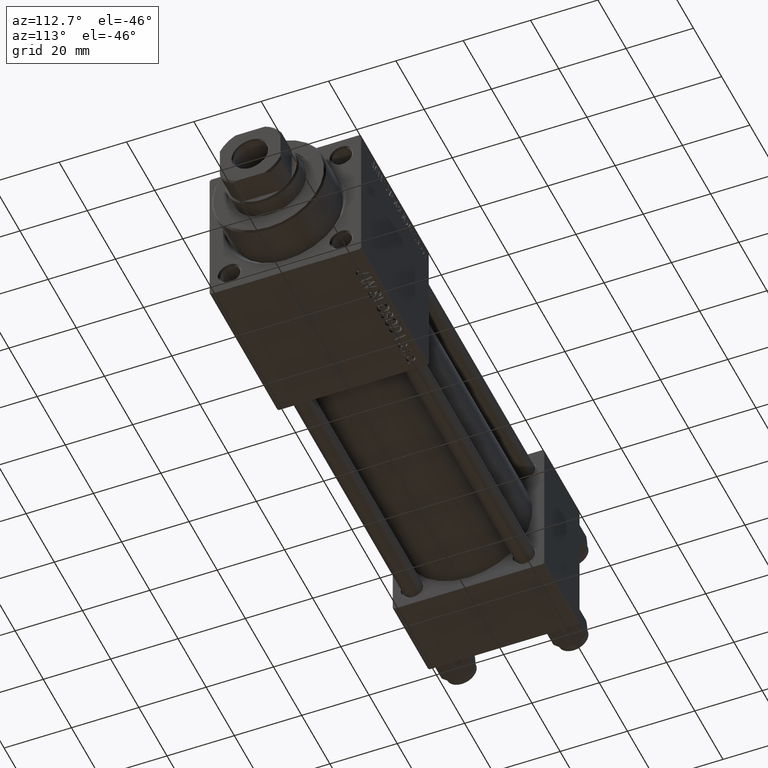
[diagram: clean part render]
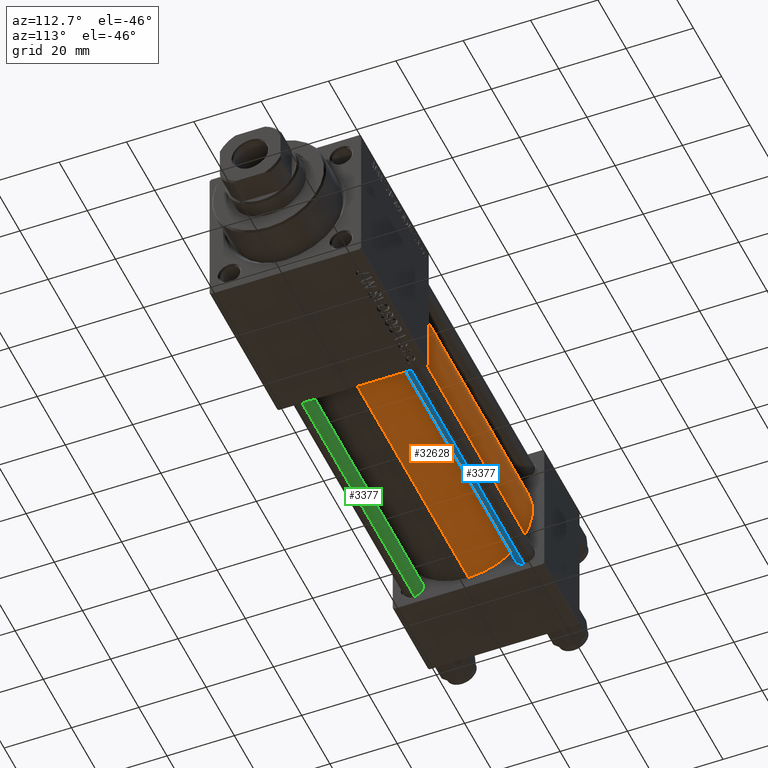
[diagram: same view with three faces highlighted in distinct colors, each labeled with its STEP entity id]
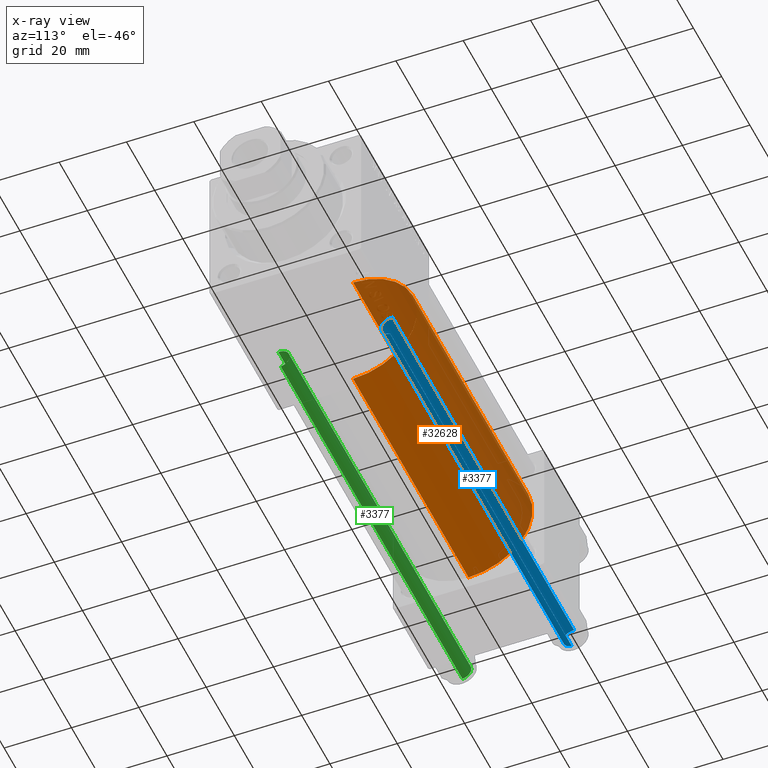
[diagram: x-ray of the same camera — body ghosted, the three highlighted faces saturated]
A machine part, auxiliary view with three faces highlighted in distinct colors.
The next image is the same camera in x-ray (body ghosted, the three faces saturated) — at least one of them is partly hidden behind the body in this view.
Their STEP definitions:

[orange] entity #32628 — the highlighted cylindrical surface (partial cylindrical patch) has radius 19 mm, axis along (-1, -0, -0).
#1298 = CARTESIAN_POINT ( 'NONE',  ( 24.99999999999999289, -2.602085213965210642E-15, 0.000000000000000000 ) ) ;
#2283 = DIRECTION ( 'NONE',  ( -1.000000000000000000, -0.000000000000000000, -0.000000000000000000 ) ) ;
#2472 = CIRCLE ( 'NONE', #20314, 19.00000000000000000 ) ;
#2782 = CARTESIAN_POINT ( 'NONE',  ( 24.99999999999999289, -2.752562955852396712E-16, -19.00000000000000000 ) ) ;
#3744 = VERTEX_POINT ( 'NONE', #37486 ) ;
#3957 = CIRCLE ( 'NONE', #32337, 19.00000000000000000 ) ;
#6066 = FACE_OUTER_BOUND ( 'NONE', #40424, .T. ) ;
#6480 = EDGE_CURVE ( 'NONE', #7196, #46369, #33509, .T. ) ;
#7196 = VERTEX_POINT ( 'NONE', #39369 ) ;
#9655 = CARTESIAN_POINT ( 'NONE',  ( 107.0000000000000142, -2.752562955852396712E-16, -19.00000000000000000 ) ) ;
#10623 = DIRECTION ( 'NONE',  ( 0.000000000000000000, 0.000000000000000000, 1.000000000000000000 ) ) ;
#11414 = ORIENTED_EDGE ( 'NONE', *, *, #6480, .T. ) ;
#14192 = DIRECTION ( 'NONE',  ( -1.000000000000000000, -0.000000000000000000, -0.000000000000000000 ) ) ;
#16784 = DIRECTION ( 'NONE',  ( 1.000000000000000000, -0.000000000000000000, 0.000000000000000000 ) ) ;
#18276 = DIRECTION ( 'NONE',  ( -1.000000000000000000, -0.000000000000000000, -0.000000000000000000 ) ) ;
#19685 = DIRECTION ( 'NONE',  ( 0.000000000000000000, 0.000000000000000000, -1.000000000000000000 ) ) ;
#20314 = AXIS2_PLACEMENT_3D ( 'NONE', #49869, #34646, #19685 ) ;
#21037 = EDGE_CURVE ( 'NONE', #46369, #45978, #3957, .T. ) ;
#21297 = CARTESIAN_POINT ( 'NONE',  ( 107.0000000000000142, -2.602085213965210642E-15, 0.000000000000000000 ) ) ;
#21550 = CYLINDRICAL_SURFACE ( 'NONE', #43943, 19.00000000000000000 ) ;
#23844 = ORIENTED_EDGE ( 'NONE', *, *, #48892, .F. ) ;
#25433 = EDGE_CURVE ( 'NONE', #7196, #3744, #2472, .T. ) ;
#29448 = CARTESIAN_POINT ( 'NONE',  ( 107.0000000000000142, -2.602085213965210642E-15, 19.00000000000000000 ) ) ;
#31673 = ORIENTED_EDGE ( 'NONE', *, *, #25433, .F. ) ;
#32337 = AXIS2_PLACEMENT_3D ( 'NONE', #1298, #16784, #47732 ) ;
#32628 = ADVANCED_FACE ( 'NONE', ( #6066 ), #21550, .T. ) ;
#33509 = LINE ( 'NONE', #9655, #47696 ) ;
#34646 = DIRECTION ( 'NONE',  ( 1.000000000000000000, 0.000000000000000000, 0.000000000000000000 ) ) ;
#35155 = ORIENTED_EDGE ( 'NONE', *, *, #21037, .T. ) ;
#37486 = CARTESIAN_POINT ( 'NONE',  ( 107.0000000000000142, -2.602085213965210642E-15, 19.00000000000000000 ) ) ;
#39163 = CARTESIAN_POINT ( 'NONE',  ( 24.99999999999999289, -2.602085213965210642E-15, 19.00000000000000000 ) ) ;
#39369 = CARTESIAN_POINT ( 'NONE',  ( 107.0000000000000142, -2.752562955852396712E-16, -19.00000000000000000 ) ) ;
#40424 = EDGE_LOOP ( 'NONE', ( #31673, #11414, #35155, #23844 ) ) ;
#43943 = AXIS2_PLACEMENT_3D ( 'NONE', #21297, #14192, #10623 ) ;
#45978 = VERTEX_POINT ( 'NONE', #39163 ) ;
#46369 = VERTEX_POINT ( 'NONE', #2782 ) ;
#47696 = VECTOR ( 'NONE', #2283, 1000.000000000000000 ) ;
#47732 = DIRECTION ( 'NONE',  ( 0.000000000000000000, 0.000000000000000000, 1.000000000000000000 ) ) ;
#48707 = LINE ( 'NONE', #29448, #48992 ) ;
#48892 = EDGE_CURVE ( 'NONE', #3744, #45978, #48707, .T. ) ;
#48992 = VECTOR ( 'NONE', #18276, 1000.000000000000000 ) ;
#49869 = CARTESIAN_POINT ( 'NONE',  ( 107.0000000000000142, -2.602085213965210642E-15, 0.000000000000000000 ) ) ;

[blue] entity #3377 — the highlighted cylindrical surface (edge-blend (fillet) strip) has radius 3 mm, axis along (1, -0, 0).
#295 = VERTEX_POINT ( 'NONE', #24241 ) ;
#695 = AXIS2_PLACEMENT_3D ( 'NONE', #1338, #43967, #43721 ) ;
#868 = CARTESIAN_POINT ( 'NONE',  ( 3.000000000000000444, 3.673940397442060361E-16, 130.0000000000000000 ) ) ;
#1338 = CARTESIAN_POINT ( 'NONE',  ( 0.000000000000000000, 0.000000000000000000, 130.0000000000000000 ) ) ;
#1771 = VECTOR ( 'NONE', #31843, 1000.000000000000000 ) ;
#2676 = ORIENTED_EDGE ( 'NONE', *, *, #44645, .T. ) ;
#3377 = ADVANCED_FACE ( 'NONE', ( #12777 ), #35872, .T. ) ;
#4682 = LINE ( 'NONE', #868, #1771 ) ;
#7948 = DIRECTION ( 'NONE',  ( 1.000000000000000000, 0.000000000000000000, 0.000000000000000000 ) ) ;
#10038 = CARTESIAN_POINT ( 'NONE',  ( -3.000000000000000444, 0.000000000000000000, 0.5000000000000281997 ) ) ;
#10704 = ORIENTED_EDGE ( 'NONE', *, *, #32348, .F. ) ;
#12777 = FACE_OUTER_BOUND ( 'NONE', #40488, .T. ) ;
#16485 = CARTESIAN_POINT ( 'NONE',  ( 3.000000000000000444, 3.673940397442060361E-16, 0.5000000000000281997 ) ) ;
#17538 = EDGE_CURVE ( 'NONE', #25490, #49614, #28222, .T. ) ;
#17662 = ORIENTED_EDGE ( 'NONE', *, *, #34194, .T. ) ;
#18284 = ORIENTED_EDGE ( 'NONE', *, *, #17538, .T. ) ;
#21807 = VECTOR ( 'NONE', #23661, 1000.000000000000000 ) ;
#22905 = AXIS2_PLACEMENT_3D ( 'NONE', #23437, #30307, #7948 ) ;
#23437 = CARTESIAN_POINT ( 'NONE',  ( 0.000000000000000000, 0.000000000000000000, 0.5000000000000281997 ) ) ;
#23661 = DIRECTION ( 'NONE',  ( -0.000000000000000000, -0.000000000000000000, -1.000000000000000000 ) ) ;
#24241 = CARTESIAN_POINT ( 'NONE',  ( 3.000000000000000444, 3.673940397442060361E-16, 129.5000000000000568 ) ) ;
#25490 = VERTEX_POINT ( 'NONE', #36405 ) ;
#28222 = LINE ( 'NONE', #43684, #21807 ) ;
#29662 = VERTEX_POINT ( 'NONE', #16485 ) ;
#30307 = DIRECTION ( 'NONE',  ( -0.000000000000000000, -0.000000000000000000, 1.000000000000000000 ) ) ;
#31834 = CIRCLE ( 'NONE', #22905, 3.000000000000000444 ) ;
#31843 = DIRECTION ( 'NONE',  ( -0.000000000000000000, -0.000000000000000000, -1.000000000000000000 ) ) ;
#32292 = CARTESIAN_POINT ( 'NONE',  ( 0.000000000000000000, 0.000000000000000000, 129.5000000000000568 ) ) ;
#32348 = EDGE_CURVE ( 'NONE', #295, #29662, #4682, .T. ) ;
#34194 = EDGE_CURVE ( 'NONE', #49614, #29662, #31834, .T. ) ;
#35872 = CYLINDRICAL_SURFACE ( 'NONE', #695, 3.000000000000000444 ) ;
#36405 = CARTESIAN_POINT ( 'NONE',  ( -3.000000000000000444, 0.000000000000000000, 129.5000000000000568 ) ) ;
#36839 = DIRECTION ( 'NONE',  ( 0.000000000000000000, 0.000000000000000000, -1.000000000000000000 ) ) ;
#40488 = EDGE_LOOP ( 'NONE', ( #10704, #2676, #18284, #17662 ) ) ;
#43684 = CARTESIAN_POINT ( 'NONE',  ( -3.000000000000000444, 0.000000000000000000, 130.0000000000000000 ) ) ;
#43721 = DIRECTION ( 'NONE',  ( -1.000000000000000000, 0.000000000000000000, 0.000000000000000000 ) ) ;
#43967 = DIRECTION ( 'NONE',  ( -0.000000000000000000, -0.000000000000000000, -1.000000000000000000 ) ) ;
#44645 = EDGE_CURVE ( 'NONE', #295, #25490, #47223, .T. ) ;
#46432 = AXIS2_PLACEMENT_3D ( 'NONE', #32292, #36839, #47758 ) ;
#47223 = CIRCLE ( 'NONE', #46432, 3.000000000000000444 ) ;
#47758 = DIRECTION ( 'NONE',  ( 1.000000000000000000, 0.000000000000000000, 0.000000000000000000 ) ) ;
#49614 = VERTEX_POINT ( 'NONE', #10038 ) ;

[green] entity #3377 — the highlighted cylindrical surface (edge-blend (fillet) strip) has radius 3 mm, axis along (-1, -0, -0).
#295 = VERTEX_POINT ( 'NONE', #24241 ) ;
#695 = AXIS2_PLACEMENT_3D ( 'NONE', #1338, #43967, #43721 ) ;
#868 = CARTESIAN_POINT ( 'NONE',  ( 3.000000000000000444, 3.673940397442060361E-16, 130.0000000000000000 ) ) ;
#1338 = CARTESIAN_POINT ( 'NONE',  ( 0.000000000000000000, 0.000000000000000000, 130.0000000000000000 ) ) ;
#1771 = VECTOR ( 'NONE', #31843, 1000.000000000000000 ) ;
#2676 = ORIENTED_EDGE ( 'NONE', *, *, #44645, .T. ) ;
#3377 = ADVANCED_FACE ( 'NONE', ( #12777 ), #35872, .T. ) ;
#4682 = LINE ( 'NONE', #868, #1771 ) ;
#7948 = DIRECTION ( 'NONE',  ( 1.000000000000000000, 0.000000000000000000, 0.000000000000000000 ) ) ;
#10038 = CARTESIAN_POINT ( 'NONE',  ( -3.000000000000000444, 0.000000000000000000, 0.5000000000000281997 ) ) ;
#10704 = ORIENTED_EDGE ( 'NONE', *, *, #32348, .F. ) ;
#12777 = FACE_OUTER_BOUND ( 'NONE', #40488, .T. ) ;
#16485 = CARTESIAN_POINT ( 'NONE',  ( 3.000000000000000444, 3.673940397442060361E-16, 0.5000000000000281997 ) ) ;
#17538 = EDGE_CURVE ( 'NONE', #25490, #49614, #28222, .T. ) ;
#17662 = ORIENTED_EDGE ( 'NONE', *, *, #34194, .T. ) ;
#18284 = ORIENTED_EDGE ( 'NONE', *, *, #17538, .T. ) ;
#21807 = VECTOR ( 'NONE', #23661, 1000.000000000000000 ) ;
#22905 = AXIS2_PLACEMENT_3D ( 'NONE', #23437, #30307, #7948 ) ;
#23437 = CARTESIAN_POINT ( 'NONE',  ( 0.000000000000000000, 0.000000000000000000, 0.5000000000000281997 ) ) ;
#23661 = DIRECTION ( 'NONE',  ( -0.000000000000000000, -0.000000000000000000, -1.000000000000000000 ) ) ;
#24241 = CARTESIAN_POINT ( 'NONE',  ( 3.000000000000000444, 3.673940397442060361E-16, 129.5000000000000568 ) ) ;
#25490 = VERTEX_POINT ( 'NONE', #36405 ) ;
#28222 = LINE ( 'NONE', #43684, #21807 ) ;
#29662 = VERTEX_POINT ( 'NONE', #16485 ) ;
#30307 = DIRECTION ( 'NONE',  ( -0.000000000000000000, -0.000000000000000000, 1.000000000000000000 ) ) ;
#31834 = CIRCLE ( 'NONE', #22905, 3.000000000000000444 ) ;
#31843 = DIRECTION ( 'NONE',  ( -0.000000000000000000, -0.000000000000000000, -1.000000000000000000 ) ) ;
#32292 = CARTESIAN_POINT ( 'NONE',  ( 0.000000000000000000, 0.000000000000000000, 129.5000000000000568 ) ) ;
#32348 = EDGE_CURVE ( 'NONE', #295, #29662, #4682, .T. ) ;
#34194 = EDGE_CURVE ( 'NONE', #49614, #29662, #31834, .T. ) ;
#35872 = CYLINDRICAL_SURFACE ( 'NONE', #695, 3.000000000000000444 ) ;
#36405 = CARTESIAN_POINT ( 'NONE',  ( -3.000000000000000444, 0.000000000000000000, 129.5000000000000568 ) ) ;
#36839 = DIRECTION ( 'NONE',  ( 0.000000000000000000, 0.000000000000000000, -1.000000000000000000 ) ) ;
#40488 = EDGE_LOOP ( 'NONE', ( #10704, #2676, #18284, #17662 ) ) ;
#43684 = CARTESIAN_POINT ( 'NONE',  ( -3.000000000000000444, 0.000000000000000000, 130.0000000000000000 ) ) ;
#43721 = DIRECTION ( 'NONE',  ( -1.000000000000000000, 0.000000000000000000, 0.000000000000000000 ) ) ;
#43967 = DIRECTION ( 'NONE',  ( -0.000000000000000000, -0.000000000000000000, -1.000000000000000000 ) ) ;
#44645 = EDGE_CURVE ( 'NONE', #295, #25490, #47223, .T. ) ;
#46432 = AXIS2_PLACEMENT_3D ( 'NONE', #32292, #36839, #47758 ) ;
#47223 = CIRCLE ( 'NONE', #46432, 3.000000000000000444 ) ;
#47758 = DIRECTION ( 'NONE',  ( 1.000000000000000000, 0.000000000000000000, 0.000000000000000000 ) ) ;
#49614 = VERTEX_POINT ( 'NONE', #10038 ) ;